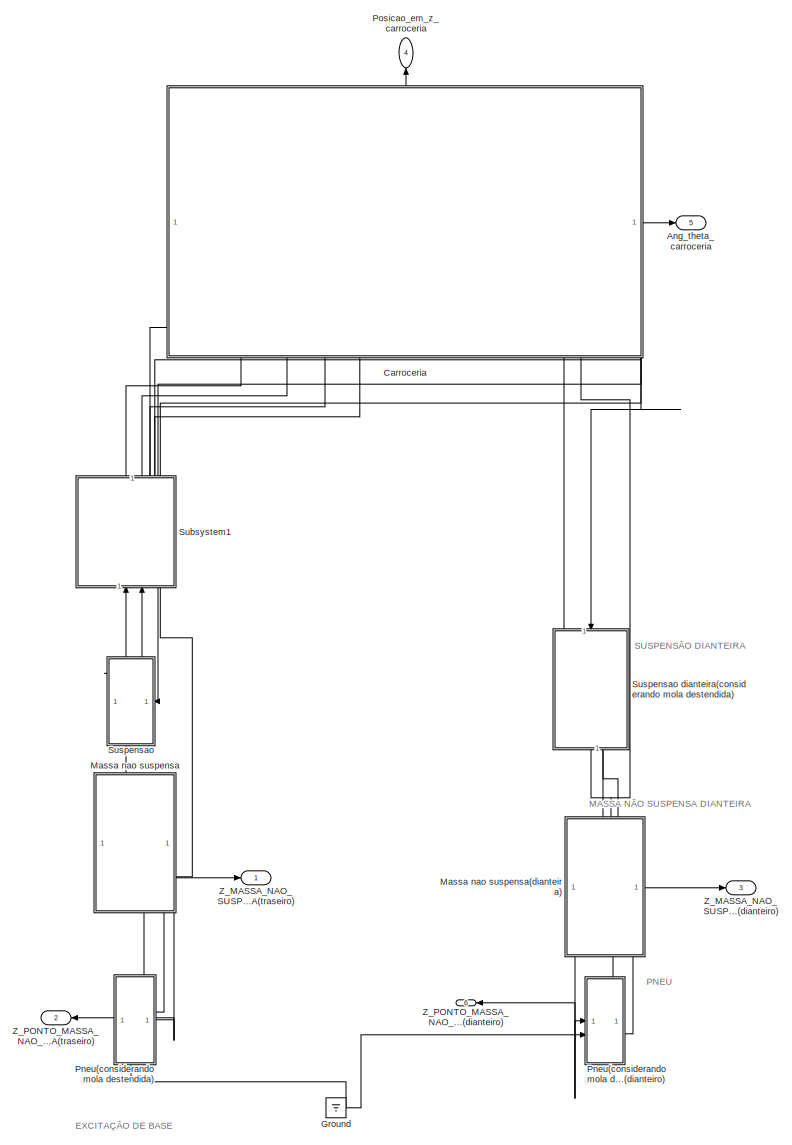
[diagram: root canvas - part 1/2, right side, full height]
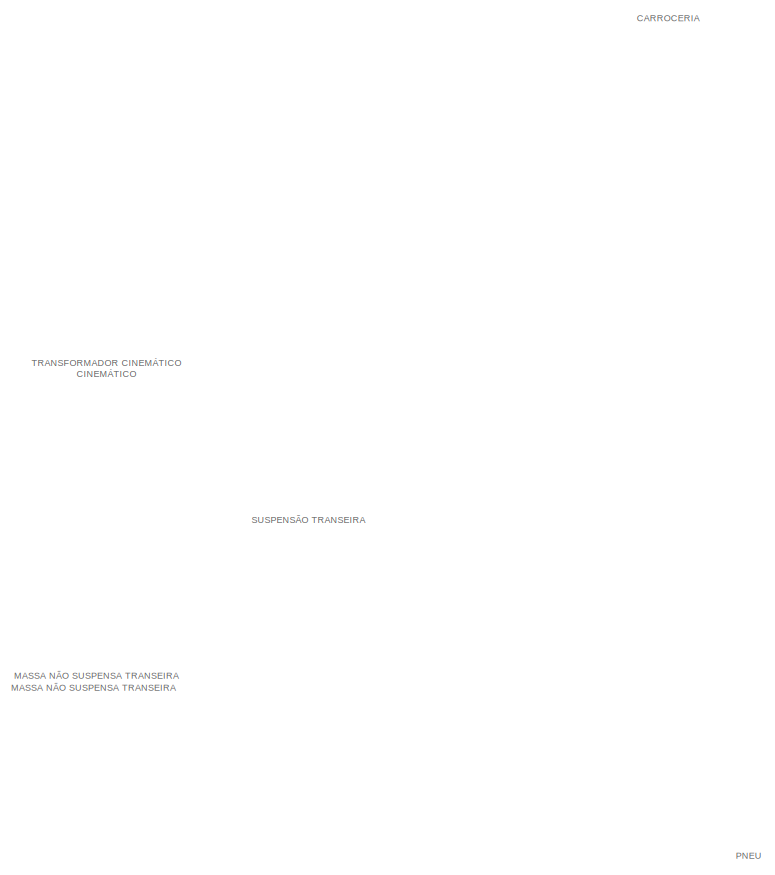
[diagram: root canvas - part 2/2, left side, full height]
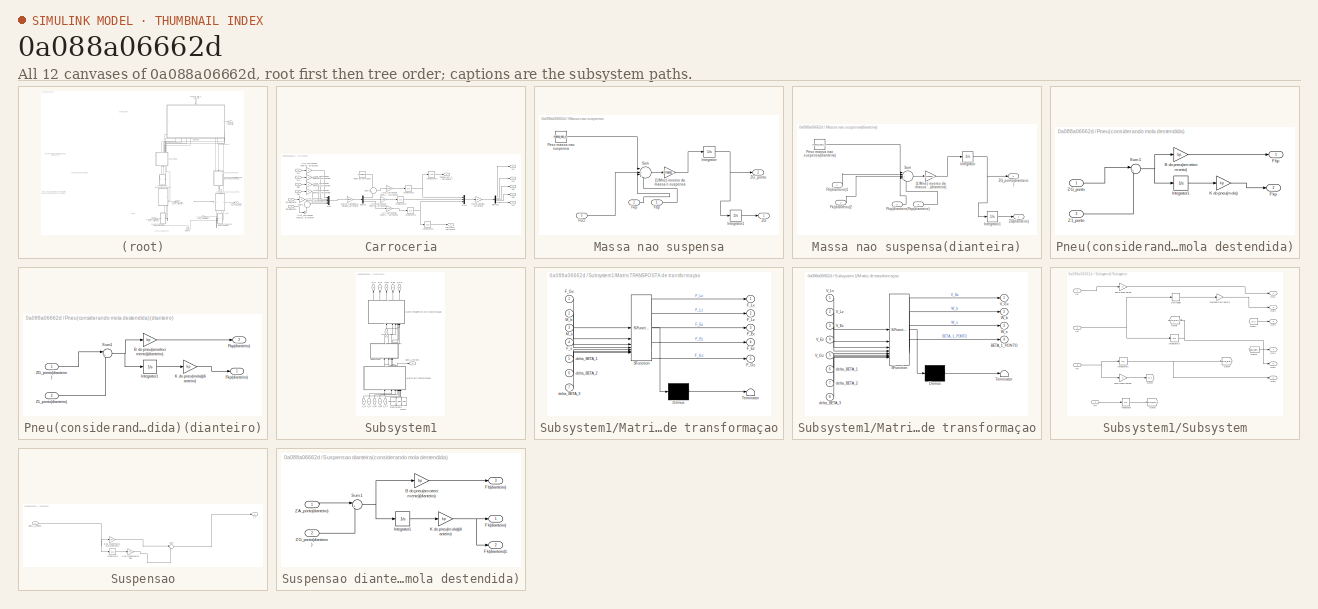
[diagram: thumbnail index - all 12 canvases of the model, root first then tree order]
MODEL slx_0a088a06662d
KIND model
CONFIG AbsTol = auto
CONFIG EnableMultiTasking = off
CONFIG FixedStep = auto
CONFIG MaxStep = auto
CONFIG MinStep = auto
CONFIG RelTol = 1e-3
CONFIG SampleTimeConstraint = Unconstrained
CONFIG SolverName = VariableStepAuto
CONFIG StartTime = 0.0
CONFIG StopTime = 10.0
BLOCK [Outport] Ang_theta_carroceria
  Port = 5
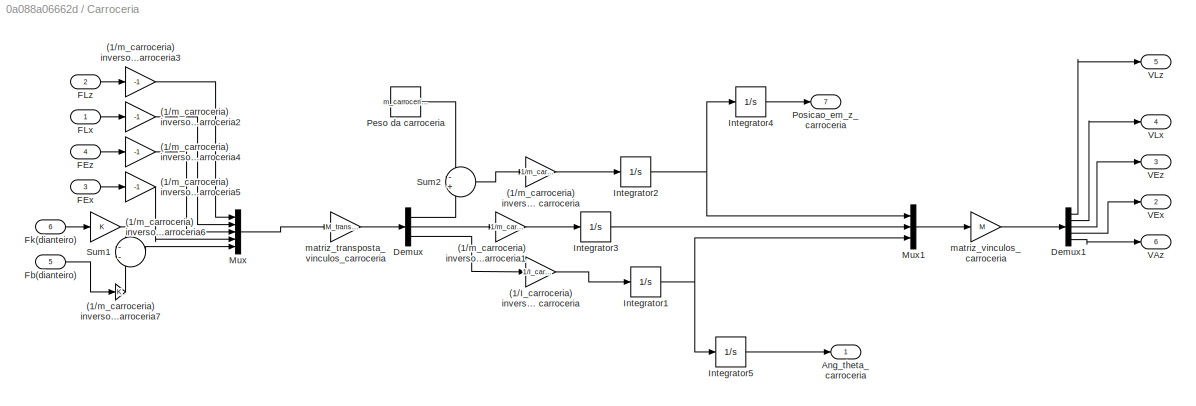
BLOCK [SubSystem] Carroceria
  PortSchema = {"entries":[{"content":{"sides":[{"content":{},"type":"ConnectorPlacement.EquallySpacedRectSide","uuid":"bbb56681-fa3a-494c-b09e-961173c7fba7"},{"content":{"connectorIds":["Out1"],"side":"RIGHT"},"type":"ConnectorPlacement.EquallySpacedRectSide","uuid":"b39b7f7c-1399-4660-80c4-7db9c0d91b8e"},{"content":{"connectorIds":["Out7"],"side":"TOP"},"type":"ConnectorPlacement.EquallySpacedRectSide","uuid":...<+438ch>
BLOCK [Gain] Carroceria/(1//I_carroceria) inverso do momento de inercia da carroceria
  Gain = 1/I_carroceria
BLOCK [Gain] Carroceria/(1//m_carroceria) inverso da massa da carroceria
  Gain = 1/m_carroceria
BLOCK [Gain] Carroceria/(1//m_carroceria) inverso da massa da carroceria1
  Gain = 1/m_carroceria
BLOCK [Gain] Carroceria/(1//m_carroceria) inverso da massa da carroceria2
  Gain = -1
BLOCK [Gain] Carroceria/(1//m_carroceria) inverso da massa da carroceria3
  Gain = -1
BLOCK [Gain] Carroceria/(1//m_carroceria) inverso da massa da carroceria4
  Gain = -1
BLOCK [Gain] Carroceria/(1//m_carroceria) inverso da massa da carroceria5
  Gain = -1
BLOCK [Gain] Carroceria/(1//m_carroceria) inverso da massa da carroceria6
BLOCK [Gain] Carroceria/(1//m_carroceria) inverso da massa da carroceria7
BLOCK [Outport] Carroceria/Ang_theta_carroceria
BLOCK [Demux] Carroceria/Demux
  Outputs = 3
BLOCK [Demux] Carroceria/Demux1
  Outputs = 5
BLOCK [Inport] Carroceria/FEx
  Port = 3
BLOCK [Inport] Carroceria/FEz
  Port = 4
BLOCK [Inport] Carroceria/FLx
BLOCK [Inport] Carroceria/FLz
  Port = 2
BLOCK [Inport] Carroceria/Fb(dianteiro)
  Port = 5
BLOCK [Inport] Carroceria/Fk(dianteiro)
  Port = 6
BLOCK [Integrator] Carroceria/Integrator1
BLOCK [Integrator] Carroceria/Integrator2
BLOCK [Integrator] Carroceria/Integrator3
  InitialCondition = Vv
BLOCK [Integrator] Carroceria/Integrator4
  InitialCondition = z0_carroceria
BLOCK [Integrator] Carroceria/Integrator5
BLOCK [Mux] Carroceria/Mux
  DisplayOption = bar
  Inputs = 5
BLOCK [Mux] Carroceria/Mux1
  DisplayOption = bar
  Inputs = 3
BLOCK [Constant] Carroceria/Peso da carroceria
  Value = m_carroceria*g
BLOCK [Outport] Carroceria/Posicao_em_z_carroceria
  Port = 7
BLOCK [Sum] Carroceria/Sum1
  Inputs = --
BLOCK [Sum] Carroceria/Sum2
  Inputs = -+
BLOCK [Outport] Carroceria/VAz
  Port = 6
BLOCK [Outport] Carroceria/VEx
  Port = 2
BLOCK [Outport] Carroceria/VEz
  Port = 3
BLOCK [Outport] Carroceria/VLx
  Port = 4
BLOCK [Outport] Carroceria/VLz
  Port = 5
BLOCK [Gain] Carroceria/matriz_transposta_vinculos_carroceria
  Gain = M_transposta
  Multiplication = Matrix(K*u) (u vector)
BLOCK [Gain] Carroceria/matriz_vinculos_carroceria
  Gain = M
  Multiplication = Matrix(K*u) (u vector)
BLOCK [Ground] Ground
BLOCK [SubSystem] Massa nao suspensa
  PortSchema = {"entries":[{"content":{"sides":[{"content":{"connectorIds":["Out2"]},"type":"ConnectorPlacement.EquallySpacedRectSide","uuid":"89344802-da43-4975-9b71-8316dc3fb6e7"},{"content":{"connectorIds":["In3","Out1"],"side":"RIGHT"},"type":"ConnectorPlacement.EquallySpacedRectSide","uuid":"44d29e65-683b-44cb-8a4b-cd86ab3b5135"},{"content":{"side":"TOP"},"type":"ConnectorPlacement.EquallySpacedRectSide","u...<+384ch>
BLOCK [SubSystem] Massa nao suspensa(dianteira)
  PortSchema = {"entries":[{"content":{"sides":[{"content":{},"type":"ConnectorPlacement.EquallySpacedRectSide","uuid":"c3cf290d-eebe-430e-95e8-be70dab148a6"},{"content":{"connectorIds":["Out1"],"side":"RIGHT"},"type":"ConnectorPlacement.EquallySpacedRectSide","uuid":"ff14580b-ed99-4b60-a1b6-b7a8b25b7868"},{"content":{"connectorIds":["Out2","In1","In2"],"side":"TOP"},"type":"ConnectorPlacement.EquallySpacedRectS...<+391ch>
BLOCK [Gain] Massa nao suspensa(dianteira)/(1//Mns) inverso da massa nao suspensa(dianteira)
  Gain = 1/massa_nao_suspensa
BLOCK [Inport] Massa nao suspensa(dianteira)/Fb(dianteiro)1
BLOCK [Inport] Massa nao suspensa(dianteira)/Fbp(dianteiro)
  Port = 4
BLOCK [Inport] Massa nao suspensa(dianteira)/Fk(dianteiro)2
  Port = 2
BLOCK [Inport] Massa nao suspensa(dianteira)/Fkp(dianteiro)
  Port = 3
BLOCK [Integrator] Massa nao suspensa(dianteira)/Integrator
BLOCK [Integrator] Massa nao suspensa(dianteira)/Integrator1
  InitialCondition = z0_roda
BLOCK [Constant] Massa nao suspensa(dianteira)/Peso massa nao suspensa(dianteira)
  Value = massa_nao_suspensa*g
BLOCK [Sum] Massa nao suspensa(dianteira)/Sum
  Inputs = |-++--
BLOCK [Outport] Massa nao suspensa(dianteira)/ZG(dianteiro)
BLOCK [Outport] Massa nao suspensa(dianteira)/ZG_ponto(dianteiro)
  Port = 2
BLOCK [Gain] Massa nao suspensa/(1//Mns) inverso da massa n suspensa
  Gain = 1/massa_nao_suspensa
BLOCK [Inport] Massa nao suspensa/FGz
  Port = 3
BLOCK [Inport] Massa nao suspensa/Fbp
BLOCK [Inport] Massa nao suspensa/Fkp
  Port = 2
BLOCK [Integrator] Massa nao suspensa/Integrator
BLOCK [Integrator] Massa nao suspensa/Integrator1
  InitialCondition = z0_roda
BLOCK [Constant] Massa nao suspensa/Peso massa nao suspensa
  Value = massa_nao_suspensa*g
BLOCK [Sum] Massa nao suspensa/Sum
  Inputs = |-+---
BLOCK [Outport] Massa nao suspensa/ZG
BLOCK [Outport] Massa nao suspensa/ZG_ponto
  Port = 2
BLOCK [SubSystem] Pneu(considerando mola destendida)
  PortSchema = {"entries":[{"content":{"sides":[{"content":{"connectorIds":["In1"]},"type":"ConnectorPlacement.EquallySpacedRectSide","uuid":"c5d69704-cabb-4fdd-98c1-bf4ac49d8bff"},{"content":{"side":"RIGHT"},"type":"ConnectorPlacement.EquallySpacedRectSide","uuid":"557f2c7d-9be1-4292-a002-7cfc4acdfa17"},{"content":{"connectorIds":["Out1","Out2"],"side":"TOP"},"type":"ConnectorPlacement.EquallySpacedRectSide","u...<+378ch>
BLOCK [SubSystem] Pneu(considerando mola destendida)(dianteiro)
  PortSchema = {"entries":[{"content":{"sides":[{"content":{"connectorIds":["In1","In2"]},"type":"ConnectorPlacement.EquallySpacedRectSide","uuid":"c5d69704-cabb-4fdd-98c1-bf4ac49d8bff"},{"content":{"side":"RIGHT"},"type":"ConnectorPlacement.EquallySpacedRectSide","uuid":"557f2c7d-9be1-4292-a002-7cfc4acdfa17"},{"content":{"connectorIds":["Out1","Out2"],"side":"TOP"},"type":"ConnectorPlacement.EquallySpacedRectSi...<+235ch>
BLOCK [Gain] Pneu(considerando mola destendida)(dianteiro)/B do pneu(amortecimento)(dianteiro)
  Gain = bp
BLOCK [Outport] Pneu(considerando mola destendida)(dianteiro)/Fbp(dianteiro)
  Port = 2
BLOCK [Outport] Pneu(considerando mola destendida)(dianteiro)/Fkp(dianteiro)
BLOCK [Integrator] Pneu(considerando mola destendida)(dianteiro)/Integrator1
BLOCK [Gain] Pneu(considerando mola destendida)(dianteiro)/K do pneu(mola)(dianteiro)
  Gain = kp
BLOCK [Sum] Pneu(considerando mola destendida)(dianteiro)/Sum1
  Inputs = |+-
BLOCK [Inport] Pneu(considerando mola destendida)(dianteiro)/Z1_ponto(dianteiro)
  Port = 2
BLOCK [Inport] Pneu(considerando mola destendida)(dianteiro)/ZG_ponto(dianteiro)
BLOCK [Gain] Pneu(considerando mola destendida)/B do pneu(amortecimento)
  Gain = bp
BLOCK [Outport] Pneu(considerando mola destendida)/Fbp
BLOCK [Outport] Pneu(considerando mola destendida)/Fkp
  Port = 2
BLOCK [Integrator] Pneu(considerando mola destendida)/Integrator1
BLOCK [Gain] Pneu(considerando mola destendida)/K do pneu(mola)
  Gain = kp
BLOCK [Sum] Pneu(considerando mola destendida)/Sum1
  Inputs = |+-
BLOCK [Inport] Pneu(considerando mola destendida)/Z1_ponto
  Port = 2
BLOCK [Inport] Pneu(considerando mola destendida)/ZG_ponto
BLOCK [Outport] Posicao_em_z_carroceria
  NameLocation = right
  Port = 4
BLOCK [SubSystem] Subsystem1
  NameLocation = right
  PortSchema = {"entries":[{"content":{"sides":[{"content":{"connectorIds":["In1","In2","Out5","Out6"]},"type":"ConnectorPlacement.EquallySpacedRectSide","uuid":"bebb3b97-f51a-4e56-a2ac-0bf355c169a6"},{"content":{"connectorIds":["Out1","Out2","Out3","Out4","In3","In4","In5","In6"],"side":"RIGHT"},"type":"ConnectorPlacement.EquallySpacedRectSide","uuid":"70a45981-1049-4317-936c-533ae84876c2"},{"content":{"side":"...<+287ch>
BLOCK [Outport] Subsystem1/BETA_1_PONTO
  Port = 5
BLOCK [Outport] Subsystem1/F_Ex
  NameLocation = right
  Port = 3
BLOCK [Outport] Subsystem1/F_Ez
  NameLocation = right
  Port = 4
BLOCK [Outport] Subsystem1/F_Gz
  NameLocation = left
  Port = 6
BLOCK [Outport] Subsystem1/F_Lx
  NameLocation = right
BLOCK [Outport] Subsystem1/F_Lz
  NameLocation = right
  Port = 2
BLOCK [Inport] Subsystem1/F_s
  NameLocation = right
  Port = 2
BLOCK [From] Subsystem1/From4
  GotoTag = delta_BETA_3
  NameLocation = right
BLOCK [From] Subsystem1/From5
  GotoTag = delta_BETA_2
  NameLocation = right
BLOCK [From] Subsystem1/From6
  GotoTag = delta_BETA_1
  NameLocation = right
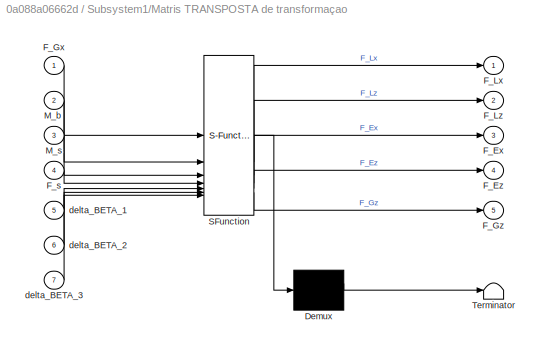
BLOCK [SubSystem] Subsystem1/Matris TRANSPOSTA de transformaçao
  ErrorFcn = Stateflow.Translate.translate
  NameLocation = right
  PermitHierarchicalResolution = ExplicitOnly
  SFBlockType = MATLAB Function
  TreatAsAtomicUnit = on
BLOCK [Demux] Subsystem1/Matris TRANSPOSTA de transformaçao/ Demux 
  Outputs = 1
BLOCK [S-Function] Subsystem1/Matris TRANSPOSTA de transformaçao/ SFunction 
  EnableBusSupport = off
  FunctionName = sf_sfun
  PortCounts = [7 6]
  SFcnIsStateOwnerBlock = off
  SFunctionDeploymentMode = off
  Tag = Stateflow S-Function 1
BLOCK [Terminator] Subsystem1/Matris TRANSPOSTA de transformaçao/ Terminator 
BLOCK [Outport] Subsystem1/Matris TRANSPOSTA de transformaçao/F_Ex
  Port = 3
BLOCK [Outport] Subsystem1/Matris TRANSPOSTA de transformaçao/F_Ez
  Port = 4
BLOCK [Inport] Subsystem1/Matris TRANSPOSTA de transformaçao/F_Gx
BLOCK [Outport] Subsystem1/Matris TRANSPOSTA de transformaçao/F_Gz
  Port = 5
BLOCK [Outport] Subsystem1/Matris TRANSPOSTA de transformaçao/F_Lx
BLOCK [Outport] Subsystem1/Matris TRANSPOSTA de transformaçao/F_Lz
  Port = 2
BLOCK [Inport] Subsystem1/Matris TRANSPOSTA de transformaçao/F_s
  Port = 4
BLOCK [Inport] Subsystem1/Matris TRANSPOSTA de transformaçao/M_b
  Port = 2
BLOCK [Inport] Subsystem1/Matris TRANSPOSTA de transformaçao/M_s
  Port = 3
BLOCK [Inport] Subsystem1/Matris TRANSPOSTA de transformaçao/delta_BETA_1
  Port = 5
BLOCK [Inport] Subsystem1/Matris TRANSPOSTA de transformaçao/delta_BETA_2
  Port = 6
BLOCK [Inport] Subsystem1/Matris TRANSPOSTA de transformaçao/delta_BETA_3
  Port = 7
BLOCK [SubSystem] Subsystem1/Matriz de transformaçao
  ErrorFcn = Stateflow.Translate.translate
  NameLocation = right
  PermitHierarchicalResolution = ExplicitOnly
  SFBlockType = MATLAB Function
  TreatAsAtomicUnit = on
BLOCK [Demux] Subsystem1/Matriz de transformaçao/ Demux 
  Outputs = 1
BLOCK [S-Function] Subsystem1/Matriz de transformaçao/ SFunction 
  EnableBusSupport = off
  FunctionName = sf_sfun
  PortCounts = [8 5]
  SFcnIsStateOwnerBlock = off
  SFunctionDeploymentMode = off
  Tag = Stateflow S-Function 2
BLOCK [Terminator] Subsystem1/Matriz de transformaçao/ Terminator 
BLOCK [Outport] Subsystem1/Matriz de transformaçao/BETA_1_PONTO
  Port = 4
BLOCK [Inport] Subsystem1/Matriz de transformaçao/V_Ex
  Port = 3
BLOCK [Inport] Subsystem1/Matriz de transformaçao/V_Ez
  Port = 4
BLOCK [Outport] Subsystem1/Matriz de transformaçao/V_Gx
  VectorParamsAs1DForOutWhenUnconnected = off
BLOCK [Inport] Subsystem1/Matriz de transformaçao/V_Gz
  Port = 5
BLOCK [Inport] Subsystem1/Matriz de transformaçao/V_Lx
BLOCK [Inport] Subsystem1/Matriz de transformaçao/V_Lz
  Port = 2
BLOCK [Outport] Subsystem1/Matriz de transformaçao/W_b
  Port = 2
BLOCK [Outport] Subsystem1/Matriz de transformaçao/W_s
  Port = 3
BLOCK [Inport] Subsystem1/Matriz de transformaçao/delta_BETA_1
  Port = 6
BLOCK [Inport] Subsystem1/Matriz de transformaçao/delta_BETA_2
  Port = 7
BLOCK [Inport] Subsystem1/Matriz de transformaçao/delta_BETA_3
  Port = 8
BLOCK [SubSystem] Subsystem1/Subsystem
  NameLocation = right
BLOCK [Derivative] Subsystem1/Subsystem/Derivador
BLOCK [From] Subsystem1/Subsystem/From7
  GotoTag = M_s
BLOCK [From] Subsystem1/Subsystem/From8
  GotoTag = delta_BETA_1
BLOCK [Goto] Subsystem1/Subsystem/Goto4
  GotoTag = delta_BETA_3
BLOCK [Goto] Subsystem1/Subsystem/Goto5
  GotoTag = delta_BETA_2
BLOCK [Goto] Subsystem1/Subsystem/Goto6
  GotoTag = delta_BETA_1
BLOCK [Goto] Subsystem1/Subsystem/Goto7
  GotoTag = M_s
BLOCK [Inport] Subsystem1/Subsystem/In1
BLOCK [Inport] Subsystem1/Subsystem/In2
  Port = 2
BLOCK [Inport] Subsystem1/Subsystem/In3
  Port = 3
BLOCK [Inport] Subsystem1/Subsystem/In4
  Port = 4
BLOCK [Integrator] Subsystem1/Subsystem/Integrator
BLOCK [Integrator] Subsystem1/Subsystem/Integrator2
BLOCK [Integrator] Subsystem1/Subsystem/Integrator3
BLOCK [Outport] Subsystem1/Subsystem/Out1
BLOCK [Outport] Subsystem1/Subsystem/Out2
  Port = 2
BLOCK [Outport] Subsystem1/Subsystem/Out3
  Port = 3
BLOCK [Outport] Subsystem1/Subsystem/Out4
  Port = 4
BLOCK [Outport] Subsystem1/Subsystem/Out5
  Port = 5
BLOCK [Outport] Subsystem1/Subsystem/Out6
  Port = 6
BLOCK [Gain] Subsystem1/Subsystem/anula essa saida
  Gain = 0
BLOCK [Gain] Subsystem1/Subsystem/anula essa saida1
  Gain = 0
BLOCK [Gain] Subsystem1/Subsystem/momento de inercia
  Gain = I
BLOCK [Inport] Subsystem1/V_Ex
  NameLocation = right
  Port = 3
BLOCK [Inport] Subsystem1/V_Ez
  NameLocation = right
  Port = 4
BLOCK [Inport] Subsystem1/V_Gz
  NameLocation = right
BLOCK [Inport] Subsystem1/V_Lx
  NameLocation = right
  Port = 5
BLOCK [Inport] Subsystem1/V_Lz
  NameLocation = right
  Port = 6
BLOCK [SubSystem] Suspensao
  NameLocation = top
  PortSchema = {"entries":[{"content":{"sides":[{"content":{},"type":"ConnectorPlacement.EquallySpacedRectSide","uuid":"4f1921ee-033d-46ee-8e73-30eca5c2181d"},{"content":{"side":"RIGHT"},"type":"ConnectorPlacement.EquallySpacedRectSide","uuid":"dda2b99d-9329-4e8f-bdf2-d73cce971ac2"},{"content":{"connectorIds":["In1","Out1"],"side":"TOP"},"type":"ConnectorPlacement.EquallySpacedRectSide","uuid":"e9d42515-3d20-42d...<+332ch>
BLOCK [SubSystem] Suspensao dianteira(considerando mola destendida)
  NameLocation = left
  PortSchema = {"entries":[{"content":{"sides":[{"content":{"connectorIds":["In1","Out3"]},"type":"ConnectorPlacement.EquallySpacedRectSide","uuid":"d327c13d-9315-480e-be5c-199a2935ffa2"},{"content":{"connectorIds":["Out1","Out2","In2"],"side":"RIGHT"},"type":"ConnectorPlacement.EquallySpacedRectSide","uuid":"b456819d-8f70-476a-8897-c81e34c4473c"},{"content":{"side":"TOP"},"type":"ConnectorPlacement.EquallySpace...<+242ch>
BLOCK [Gain] Suspensao dianteira(considerando mola destendida)/B do pneu(amortecimento)(dianteiro)
  Gain = bp
BLOCK [Outport] Suspensao dianteira(considerando mola destendida)/Fb(dianteiro)
  Port = 3
BLOCK [Outport] Suspensao dianteira(considerando mola destendida)/Fk(dianteiro)
BLOCK [Outport] Suspensao dianteira(considerando mola destendida)/Fk(dianteiro)1
  Port = 2
BLOCK [Integrator] Suspensao dianteira(considerando mola destendida)/Integrator1
BLOCK [Gain] Suspensao dianteira(considerando mola destendida)/K do pneu(mola)(dianteiro)
  Gain = kp
BLOCK [Sum] Suspensao dianteira(considerando mola destendida)/Sum1
  Inputs = |+-
BLOCK [Inport] Suspensao dianteira(considerando mola destendida)/ZA_ponto(dianteiro)
BLOCK [Inport] Suspensao dianteira(considerando mola destendida)/ZG_ponto(dianteiro)
  Port = 2
BLOCK [Gain] Suspensao/B da suspensao(amortecimento)
  Gain = bs
BLOCK [Inport] Suspensao/BETA_1_PONTO
BLOCK [Outport] Suspensao/F_s
BLOCK [Integrator] Suspensao/Integrator1
BLOCK [Gain] Suspensao/K da suspensao(mola)
  Gain = ks
BLOCK [Sum] Suspensao/Sum
  Inputs = |++
BLOCK [Outport] Z_MASSA_NAO_SUSPENSA(dianteiro)
  Port = 3
BLOCK [Outport] Z_MASSA_NAO_SUSPENSA(traseiro)
BLOCK [Outport] Z_PONTO_MASSA_NAO_SUSPENSA(dianteiro)
  Port = 6
BLOCK [Outport] Z_PONTO_MASSA_NAO_SUSPENSA(traseiro)
  NameLocation = top
  Port = 2
ANNOTATION (root): CARROCERIA
ANNOTATION (root): EXCITAÇÃO DE BASE
ANNOTATION (root): MASSA NÃO SUSPENSA DIANTEIRA
ANNOTATION (root): MASSA NÃO SUSPENSA TRANSEIRA
ANNOTATION (root): PNEU
ANNOTATION (root): SUSPENSÃO DIANTEIRA
ANNOTATION (root): SUSPENSÃO TRANSEIRA
ANNOTATION (root): TRANSFORMADOR CINEMÁTICO CINEMÁTICO
LINE Carroceria/(1//I_carroceria) inverso do momento de inercia da carroceria:1 -> Carroceria/Integrator1:1
LINE Carroceria/(1//m_carroceria) inverso da massa da carroceria1:1 -> Carroceria/Integrator3:1
LINE Carroceria/(1//m_carroceria) inverso da massa da carroceria2:1 -> Carroceria/Mux:2
LINE Carroceria/(1//m_carroceria) inverso da massa da carroceria3:1 -> Carroceria/Mux:1
LINE Carroceria/(1//m_carroceria) inverso da massa da carroceria4:1 -> Carroceria/Mux:3
LINE Carroceria/(1//m_carroceria) inverso da massa da carroceria5:1 -> Carroceria/Mux:4
LINE Carroceria/(1//m_carroceria) inverso da massa da carroceria6:1 -> Carroceria/Sum1:1
LINE Carroceria/(1//m_carroceria) inverso da massa da carroceria7:1 -> Carroceria/Sum1:2
LINE Carroceria/(1//m_carroceria) inverso da massa da carroceria:1 -> Carroceria/Integrator2:1
LINE Carroceria/Demux1:1 -> Carroceria/VLz:1
LINE Carroceria/Demux1:2 -> Carroceria/VLx:1
LINE Carroceria/Demux1:3 -> Carroceria/VEz:1
LINE Carroceria/Demux1:4 -> Carroceria/VEx:1
LINE Carroceria/Demux1:5 -> Carroceria/VAz:1
LINE Carroceria/Demux:1 -> Carroceria/Sum2:2
LINE Carroceria/Demux:2 -> Carroceria/(1//m_carroceria) inverso da massa da carroceria1:1
LINE Carroceria/Demux:3 -> Carroceria/(1//I_carroceria) inverso do momento de inercia da carroceria:1
LINE Carroceria/FEx:1 -> Carroceria/(1//m_carroceria) inverso da massa da carroceria5:1
LINE Carroceria/FEz:1 -> Carroceria/(1//m_carroceria) inverso da massa da carroceria4:1
LINE Carroceria/FLx:1 -> Carroceria/(1//m_carroceria) inverso da massa da carroceria2:1
LINE Carroceria/FLz:1 -> Carroceria/(1//m_carroceria) inverso da massa da carroceria3:1
LINE Carroceria/Fb(dianteiro):1 -> Carroceria/(1//m_carroceria) inverso da massa da carroceria7:1
LINE Carroceria/Fk(dianteiro):1 -> Carroceria/(1//m_carroceria) inverso da massa da carroceria6:1
NET Carroceria/Integrator1:1 -> Carroceria/Integrator5:1, Carroceria/Mux1:3
NET Carroceria/Integrator2:1 -> Carroceria/Integrator4:1, Carroceria/Mux1:1
LINE Carroceria/Integrator3:1 -> Carroceria/Mux1:2
LINE Carroceria/Integrator4:1 -> Carroceria/Posicao_em_z_carroceria:1
LINE Carroceria/Integrator5:1 -> Carroceria/Ang_theta_carroceria:1
LINE Carroceria/Mux1:1 -> Carroceria/matriz_vinculos_carroceria:1
LINE Carroceria/Mux:1 -> Carroceria/matriz_transposta_vinculos_carroceria:1
LINE Carroceria/Peso da carroceria:1 -> Carroceria/Sum2:1
LINE Carroceria/Sum1:1 -> Carroceria/Mux:5
LINE Carroceria/Sum2:1 -> Carroceria/(1//m_carroceria) inverso da massa da carroceria:1
LINE Carroceria/matriz_transposta_vinculos_carroceria:1 -> Carroceria/Demux:1
LINE Carroceria/matriz_vinculos_carroceria:1 -> Carroceria/Demux1:1
LINE Carroceria:1 -> Ang_theta_carroceria:1
LINE Carroceria:2 -> Subsystem1:3
LINE Carroceria:3 -> Subsystem1:4
LINE Carroceria:4 -> Subsystem1:5
LINE Carroceria:5 -> Subsystem1:6
LINE Carroceria:6 -> Suspensao dianteira(considerando mola destendida):1
LINE Carroceria:7 -> Posicao_em_z_carroceria:1
NET Ground:1 -> Pneu(considerando mola destendida)(dianteiro):2, Pneu(considerando mola destendida):2
LINE Massa nao suspensa(dianteira)/(1//Mns) inverso da massa nao suspensa(dianteira):1 -> Massa nao suspensa(dianteira)/Integrator:1
LINE Massa nao suspensa(dianteira)/Fb(dianteiro)1:1 -> Massa nao suspensa(dianteira)/Sum:2
LINE Massa nao suspensa(dianteira)/Fbp(dianteiro):1 -> Massa nao suspensa(dianteira)/Sum:5
LINE Massa nao suspensa(dianteira)/Fk(dianteiro)2:1 -> Massa nao suspensa(dianteira)/Sum:3
LINE Massa nao suspensa(dianteira)/Fkp(dianteiro):1 -> Massa nao suspensa(dianteira)/Sum:4
LINE Massa nao suspensa(dianteira)/Integrator1:1 -> Massa nao suspensa(dianteira)/ZG(dianteiro):1
NET Massa nao suspensa(dianteira)/Integrator:1 -> Massa nao suspensa(dianteira)/Integrator1:1, Massa nao suspensa(dianteira)/ZG_ponto(dianteiro):1
LINE Massa nao suspensa(dianteira)/Peso massa nao suspensa(dianteira):1 -> Massa nao suspensa(dianteira)/Sum:1
LINE Massa nao suspensa(dianteira)/Sum:1 -> Massa nao suspensa(dianteira)/(1//Mns) inverso da massa nao suspensa(dianteira):1
LINE Massa nao suspensa(dianteira):1 -> Z_MASSA_NAO_SUSPENSA(dianteiro):1
NET Massa nao suspensa(dianteira):2 -> Pneu(considerando mola destendida)(dianteiro):1, Suspensao dianteira(considerando mola destendida):2, Z_PONTO_MASSA_NAO_SUSPENSA(dianteiro):1
LINE Massa nao suspensa/(1//Mns) inverso da massa n suspensa:1 -> Massa nao suspensa/Integrator:1
LINE Massa nao suspensa/FGz:1 -> Massa nao suspensa/Sum:3
LINE Massa nao suspensa/Fbp:1 -> Massa nao suspensa/Sum:5
LINE Massa nao suspensa/Fkp:1 -> Massa nao suspensa/Sum:4
LINE Massa nao suspensa/Integrator1:1 -> Massa nao suspensa/ZG:1
NET Massa nao suspensa/Integrator:1 -> Massa nao suspensa/Integrator1:1, Massa nao suspensa/ZG_ponto:1
LINE Massa nao suspensa/Peso massa nao suspensa:1 -> Massa nao suspensa/Sum:1
LINE Massa nao suspensa/Sum:1 -> Massa nao suspensa/(1//Mns) inverso da massa n suspensa:1
LINE Massa nao suspensa:1 -> Z_MASSA_NAO_SUSPENSA(traseiro):1
NET Massa nao suspensa:2 -> Pneu(considerando mola destendida):1, Subsystem1:1, Z_PONTO_MASSA_NAO_SUSPENSA(traseiro):1
LINE Pneu(considerando mola destendida)(dianteiro)/B do pneu(amortecimento)(dianteiro):1 -> Pneu(considerando mola destendida)(dianteiro)/Fbp(dianteiro):1
LINE Pneu(considerando mola destendida)(dianteiro)/Integrator1:1 -> Pneu(considerando mola destendida)(dianteiro)/K do pneu(mola)(dianteiro):1
LINE Pneu(considerando mola destendida)(dianteiro)/K do pneu(mola)(dianteiro):1 -> Pneu(considerando mola destendida)(dianteiro)/Fkp(dianteiro):1
NET Pneu(considerando mola destendida)(dianteiro)/Sum1:1 -> Pneu(considerando mola destendida)(dianteiro)/B do pneu(amortecimento)(dianteiro):1, Pneu(considerando mola destendida)(dianteiro)/Integrator1:1
LINE Pneu(considerando mola destendida)(dianteiro)/Z1_ponto(dianteiro):1 -> Pneu(considerando mola destendida)(dianteiro)/Sum1:2
LINE Pneu(considerando mola destendida)(dianteiro)/ZG_ponto(dianteiro):1 -> Pneu(considerando mola destendida)(dianteiro)/Sum1:1
LINE Pneu(considerando mola destendida)(dianteiro):1 -> Massa nao suspensa(dianteira):3
LINE Pneu(considerando mola destendida)(dianteiro):2 -> Massa nao suspensa(dianteira):4
LINE Pneu(considerando mola destendida)/B do pneu(amortecimento):1 -> Pneu(considerando mola destendida)/Fbp:1
LINE Pneu(considerando mola destendida)/Integrator1:1 -> Pneu(considerando mola destendida)/K do pneu(mola):1
LINE Pneu(considerando mola destendida)/K do pneu(mola):1 -> Pneu(considerando mola destendida)/Fkp:1
NET Pneu(considerando mola destendida)/Sum1:1 -> Pneu(considerando mola destendida)/B do pneu(amortecimento):1, Pneu(considerando mola destendida)/Integrator1:1
LINE Pneu(considerando mola destendida)/Z1_ponto:1 -> Pneu(considerando mola destendida)/Sum1:2
LINE Pneu(considerando mola destendida)/ZG_ponto:1 -> Pneu(considerando mola destendida)/Sum1:1
LINE Pneu(considerando mola destendida):1 -> Massa nao suspensa:1
LINE Pneu(considerando mola destendida):2 -> Massa nao suspensa:2
LINE Subsystem1/F_s:1 -> Subsystem1/Matris TRANSPOSTA de transformaçao:4
LINE Subsystem1/From4:1 -> Subsystem1/Matriz de transformaçao:8
LINE Subsystem1/From5:1 -> Subsystem1/Matriz de transformaçao:7
LINE Subsystem1/From6:1 -> Subsystem1/Matriz de transformaçao:6
LINE Subsystem1/Matris TRANSPOSTA de transformaçao:1 -> Subsystem1/F_Lx:1
LINE Subsystem1/Matris TRANSPOSTA de transformaçao:2 -> Subsystem1/F_Lz:1
LINE Subsystem1/Matris TRANSPOSTA de transformaçao:3 -> Subsystem1/F_Ex:1
LINE Subsystem1/Matris TRANSPOSTA de transformaçao:4 -> Subsystem1/F_Ez:1
LINE Subsystem1/Matris TRANSPOSTA de transformaçao:5 -> Subsystem1/F_Gz:1
LINE Subsystem1/Matriz de transformaçao:1 -> Subsystem1/Subsystem:1
LINE Subsystem1/Matriz de transformaçao:2 -> Subsystem1/Subsystem:2
LINE Subsystem1/Matriz de transformaçao:3 -> Subsystem1/Subsystem:3
NET Subsystem1/Matriz de transformaçao:4 -> Subsystem1/BETA_1_PONTO:1, Subsystem1/Subsystem:4
LINE Subsystem1/Subsystem/Derivador:1 -> Subsystem1/Subsystem/momento de inercia:1
LINE Subsystem1/Subsystem/From7:1 -> Subsystem1/Subsystem/Out3:1
LINE Subsystem1/Subsystem/From8:1 -> Subsystem1/Subsystem/Out4:1
LINE Subsystem1/Subsystem/In1:1 -> Subsystem1/Subsystem/anula essa saida:1
NET Subsystem1/Subsystem/In2:1 -> Subsystem1/Subsystem/Derivador:1, Subsystem1/Subsystem/Integrator3:1
NET Subsystem1/Subsystem/In3:1 -> Subsystem1/Subsystem/Integrator2:1, Subsystem1/Subsystem/anula essa saida1:1
LINE Subsystem1/Subsystem/In4:1 -> Subsystem1/Subsystem/Integrator:1
NET Subsystem1/Subsystem/Integrator2:1 -> Subsystem1/Subsystem/Goto4:1, Subsystem1/Subsystem/Out6:1
NET Subsystem1/Subsystem/Integrator3:1 -> Subsystem1/Subsystem/Goto5:1, Subsystem1/Subsystem/Out5:1
LINE Subsystem1/Subsystem/Integrator:1 -> Subsystem1/Subsystem/Goto6:1
LINE Subsystem1/Subsystem/anula essa saida1:1 -> Subsystem1/Subsystem/Goto7:1
LINE Subsystem1/Subsystem/anula essa saida:1 -> Subsystem1/Subsystem/Out1:1
LINE Subsystem1/Subsystem/momento de inercia:1 -> Subsystem1/Subsystem/Out2:1
LINE Subsystem1/Subsystem:1 -> Subsystem1/Matris TRANSPOSTA de transformaçao:1
LINE Subsystem1/Subsystem:2 -> Subsystem1/Matris TRANSPOSTA de transformaçao:2
LINE Subsystem1/Subsystem:3 -> Subsystem1/Matris TRANSPOSTA de transformaçao:3
LINE Subsystem1/Subsystem:4 -> Subsystem1/Matris TRANSPOSTA de transformaçao:5
LINE Subsystem1/Subsystem:5 -> Subsystem1/Matris TRANSPOSTA de transformaçao:6
LINE Subsystem1/Subsystem:6 -> Subsystem1/Matris TRANSPOSTA de transformaçao:7
LINE Subsystem1/V_Ex:1 -> Subsystem1/Matriz de transformaçao:3
LINE Subsystem1/V_Ez:1 -> Subsystem1/Matriz de transformaçao:4
LINE Subsystem1/V_Gz:1 -> Subsystem1/Matriz de transformaçao:5
LINE Subsystem1/V_Lx:1 -> Subsystem1/Matriz de transformaçao:1
LINE Subsystem1/V_Lz:1 -> Subsystem1/Matriz de transformaçao:2
LINE Subsystem1:1 -> Carroceria:1
LINE Subsystem1:2 -> Carroceria:2
LINE Subsystem1:3 -> Carroceria:3
LINE Subsystem1:4 -> Carroceria:4
LINE Subsystem1:5 -> Suspensao:1
LINE Subsystem1:6 -> Massa nao suspensa:3
LINE Suspensao dianteira(considerando mola destendida)/B do pneu(amortecimento)(dianteiro):1 -> Suspensao dianteira(considerando mola destendida)/Fb(dianteiro):1
LINE Suspensao dianteira(considerando mola destendida)/Integrator1:1 -> Suspensao dianteira(considerando mola destendida)/K do pneu(mola)(dianteiro):1
NET Suspensao dianteira(considerando mola destendida)/K do pneu(mola)(dianteiro):1 -> Suspensao dianteira(considerando mola destendida)/Fk(dianteiro)1:1, Suspensao dianteira(considerando mola destendida)/Fk(dianteiro):1
NET Suspensao dianteira(considerando mola destendida)/Sum1:1 -> Suspensao dianteira(considerando mola destendida)/B do pneu(amortecimento)(dianteiro):1, Suspensao dianteira(considerando mola destendida)/Integrator1:1
LINE Suspensao dianteira(considerando mola destendida)/ZA_ponto(dianteiro):1 -> Suspensao dianteira(considerando mola destendida)/Sum1:1
LINE Suspensao dianteira(considerando mola destendida)/ZG_ponto(dianteiro):1 -> Suspensao dianteira(considerando mola destendida)/Sum1:2
NET Suspensao dianteira(considerando mola destendida):1 -> Carroceria:6, Massa nao suspensa(dianteira):2
LINE Suspensao dianteira(considerando mola destendida):2 -> Massa nao suspensa(dianteira):1
LINE Suspensao dianteira(considerando mola destendida):3 -> Carroceria:5
LINE Suspensao/B da suspensao(amortecimento):1 -> Suspensao/Sum:1
NET Suspensao/BETA_1_PONTO:1 -> Suspensao/B da suspensao(amortecimento):1, Suspensao/Integrator1:1
LINE Suspensao/Integrator1:1 -> Suspensao/K da suspensao(mola):1
LINE Suspensao/K da suspensao(mola):1 -> Suspensao/Sum:2
LINE Suspensao/Sum:1 -> Suspensao/F_s:1
LINE Suspensao:1 -> Subsystem1:2
note: NET lines group one-source signal fan-out (src -> all destinations, sorted); 1:1 wires keep LINE
CHART Subsystem1/Matris TRANSPOSTA de transformaçao states=1 transitions=1
  STATE_LABEL 'eML_blk_kernel()'
  STATE_LABEL 'SCRIPT:\n\nfunction [F_Lx, F_Lz, F_Ex, F_Ez, F_Gz] = minhaFuncaoForcas( ...\n    F_Gx, M_b, M_s, F_s, delta_BETA_1, delta_BETA_2, delta_BETA_3)\n\n    % Valores nominais iniciais\n    BETA_1_0 = 0.055;\n    BETA_2_0 = 2.6;\n    BETA_3_0 = 2.2;\n\n    % Limites físicos dos parâmetros\n    BETA_1_min = 0.05465;\n    BETA_1_max = 0.0589;\n    BETA_2_min = 2.591;\n    BETA_2_max = 2.729;\n    BETA_3_min = 2.168;\n   ...<+1252ch>'
CHART Subsystem1/Matriz de transformaçao states=1 transitions=1
  STATE_LABEL 'eML_blk_kernel()'
  STATE_LABEL 'SCRIPT:\nfunction [V_Gx, W_b, W_s, BETA_1_PONTO] = fcn( ...\n    V_Lx, V_Lz, V_Ex, V_Ez, V_Gz, ...\n    delta_BETA_1, delta_BETA_2, delta_BETA_3)\n\n% Valores nominais (iniciais)\nBETA_1_0 = 0.055;\nBETA_2_0 = 2.6;\nBETA_3_0 = 2.2;\n\n% Limites físicos dos parâmetros\nBETA_1_min = 0.05465;\nBETA_1_max = 0.0589;\nBETA_2_min = 2.591;\nBETA_2_max = 2.729;\nBETA_3_min = 2.168;\nBETA_3_max = 2.264;\n\n% Atualização dos ...<+1033ch>'
CHART  states=0 transitions=0
CHART  states=0 transitions=0
